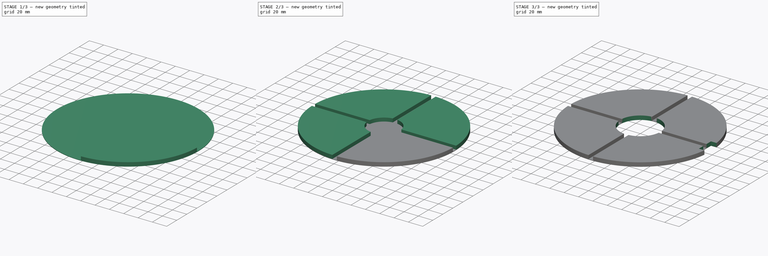
[diagram: build sequence overview — one tinted view per stage of 3, left to right]
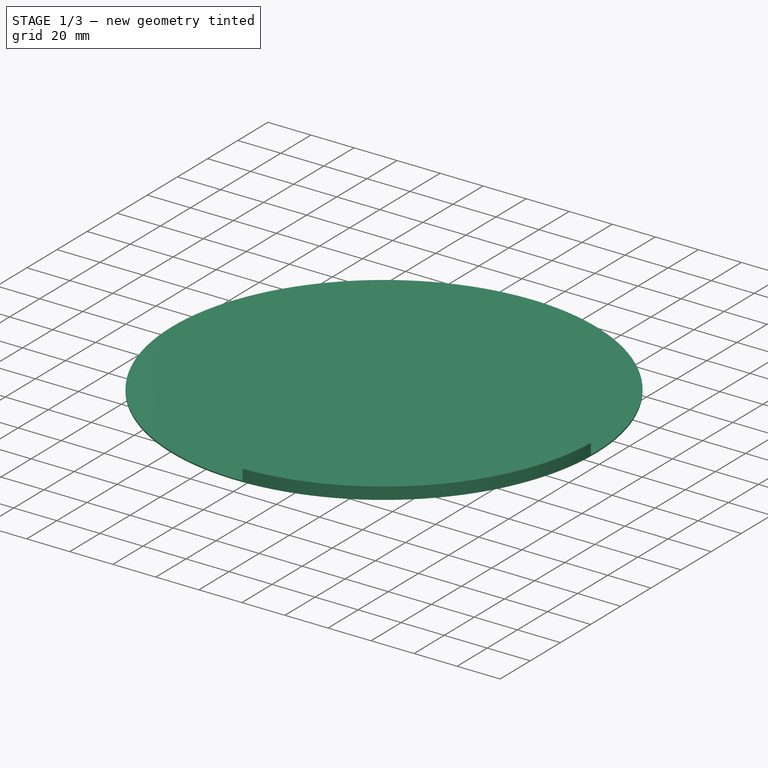
[diagram: stage 1 of 3 — iso view after this stage's code; geometry added in this stage tinted green]
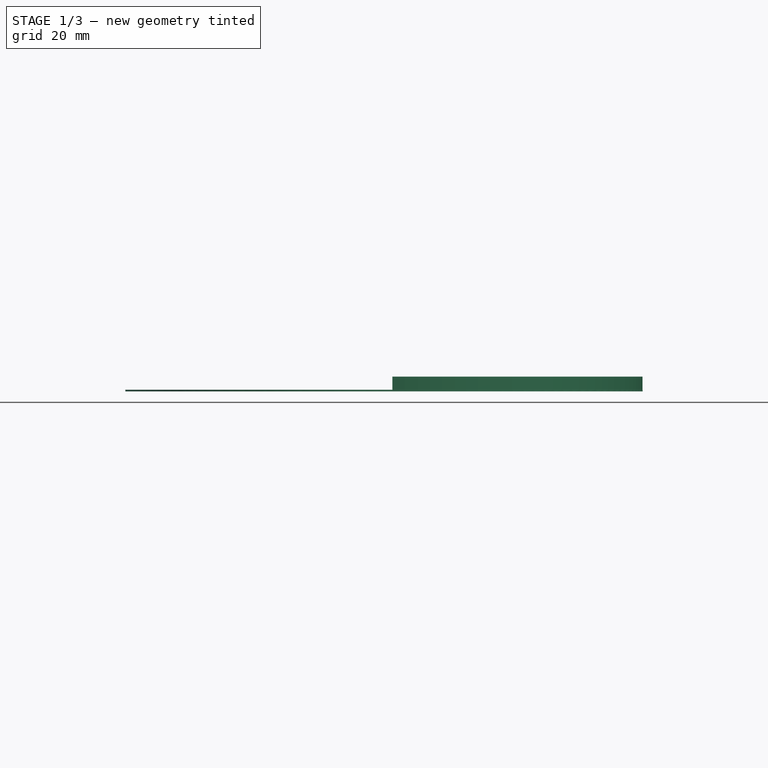
[diagram: stage 1 of 3 — front view after this stage's code; geometry added in this stage tinted green]
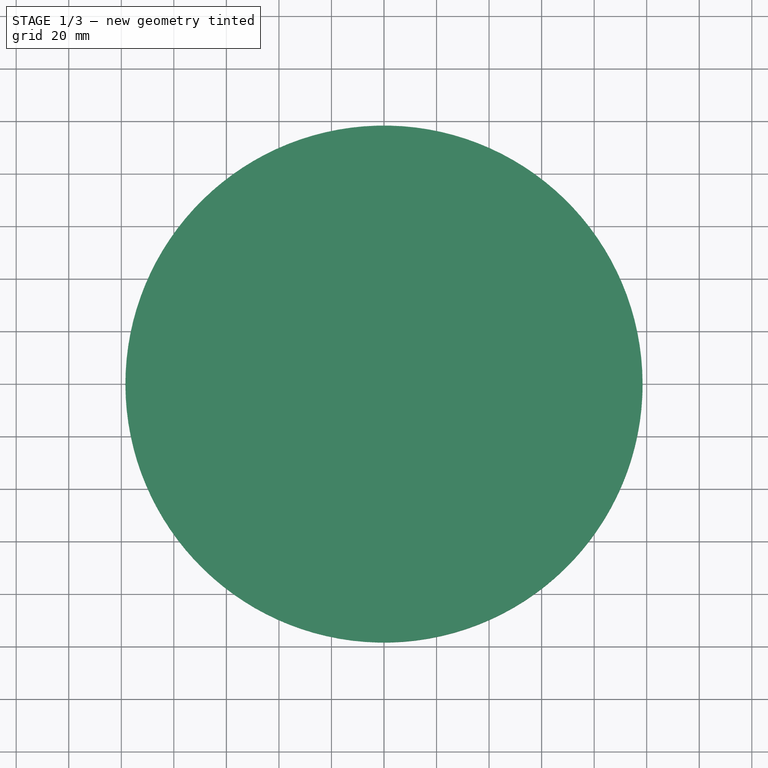
[diagram: stage 1 of 3 — top view after this stage's code; geometry added in this stage tinted green]
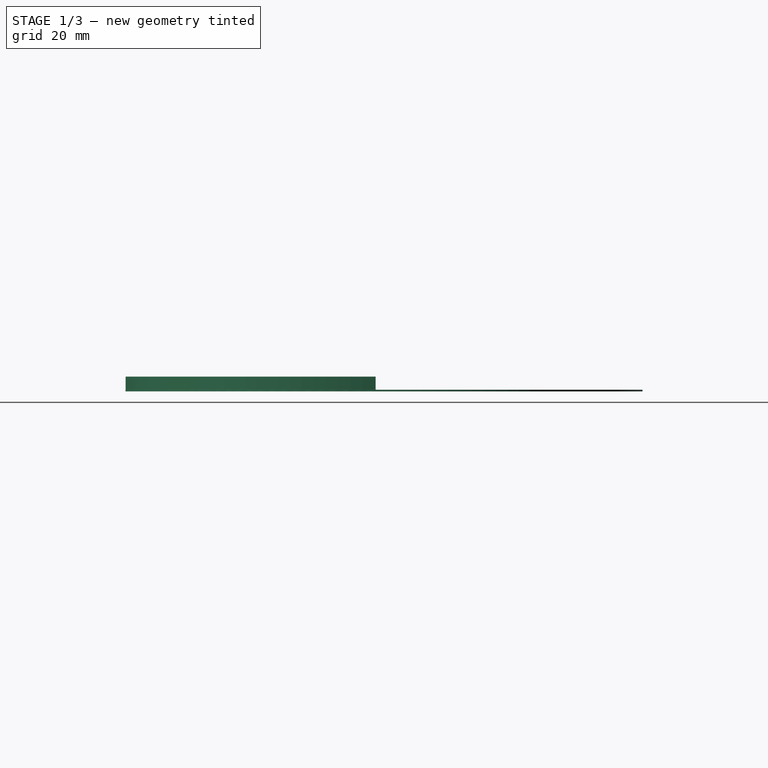
[diagram: stage 1 of 3 — right view after this stage's code; geometry added in this stage tinted green]
FCSTD DOCUMENT  (FreeCAD 0.14R3702 (Git))
Label: spacer_solid
License: CC-BY 3.0
LicenseURL: http://creativecommons.org/licenses/by/3.0/
objects: Sketcher::SketchObject×4, Drawing::FeatureViewPart×4, PartDesign::Pad×2, PartDesign::Pocket×2, PartDesign::PolarPattern×1, Drawing::FeaturePage×1
note: 13 computed .brp shape members not serialized (recipe doc carries the construction recipe); baked Part::Feature solids carry a one-line shape summary decoded from their .brp

FEATURE [Sketcher::SketchObject] Sketch
  sketch-geometry (1):
    g0: Circle CenterX=0 CenterY=0 CenterZ=0 NormalX=0 NormalY=0 NormalZ=1 Radius=98.425
  constraints (2):
    c: Coincident(g0,g-1)
    c: Radius(g0) = 98.425
FEATURE [PartDesign::Pad] Pad
  Length = 0.6
  Length2 = 0.3
  Reversed = true
  Sketch = -> Sketch
  Type = 0
FEATURE [Sketcher::SketchObject] Sketch001
  Support = -> Pad [Face2]
  sketch-geometry (4):
    g0: ArcOfCircle CenterX=0 CenterY=0 CenterZ=0 NormalX=0 NormalY=0 NormalZ=1 Radius=22.225 StartAngle=4.85574 EndAngle=6.13984
    g1: ArcOfCircle CenterX=0 CenterY=0 CenterZ=0 NormalX=0 NormalY=0 NormalZ=1 Radius=98.425 StartAngle=4.74465 EndAngle=6.25092
    g2: LineSegment StartX=21.997 StartY=-3.175 StartZ=0 EndX=98.3738 EndY=-3.175 EndZ=0
    g3: LineSegment StartX=3.175 StartY=-21.997 StartZ=0 EndX=3.175 EndY=-98.3738 EndZ=0
  constraints (12):
    c: Coincident(g0,g-1)
    c: Coincident(g1,g-1)
    c: Horizontal(g2)
    c: Coincident(g2,g1)
    c: Coincident(g2,g0)
    c: Coincident(g3,g0)
    c: Coincident(g3,g1)
    c: Vertical(g3)
    c: Radius(g0) = 22.225
    c: Radius(g1) = 98.425
    c: DistanceY(g-1,g0) = -3.175
    c: DistanceX(g-1,g0) = 3.175
FEATURE [PartDesign::Pad] Pad001
  Length = 5
  Length2 = 0.3
  Sketch = -> Sketch001
  Type = 0
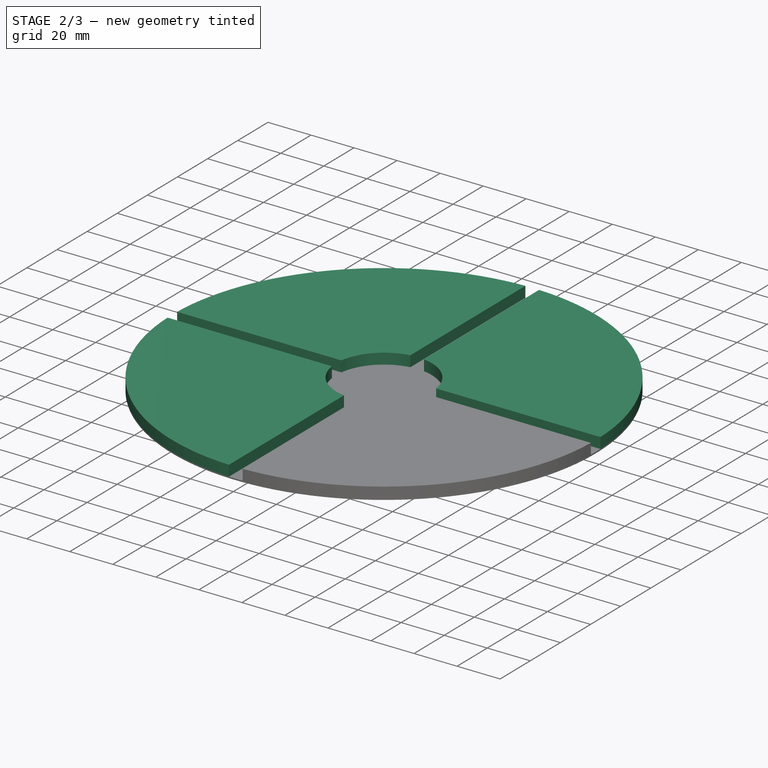
[diagram: stage 2 of 3 — iso view after this stage's code; geometry added in this stage tinted green]
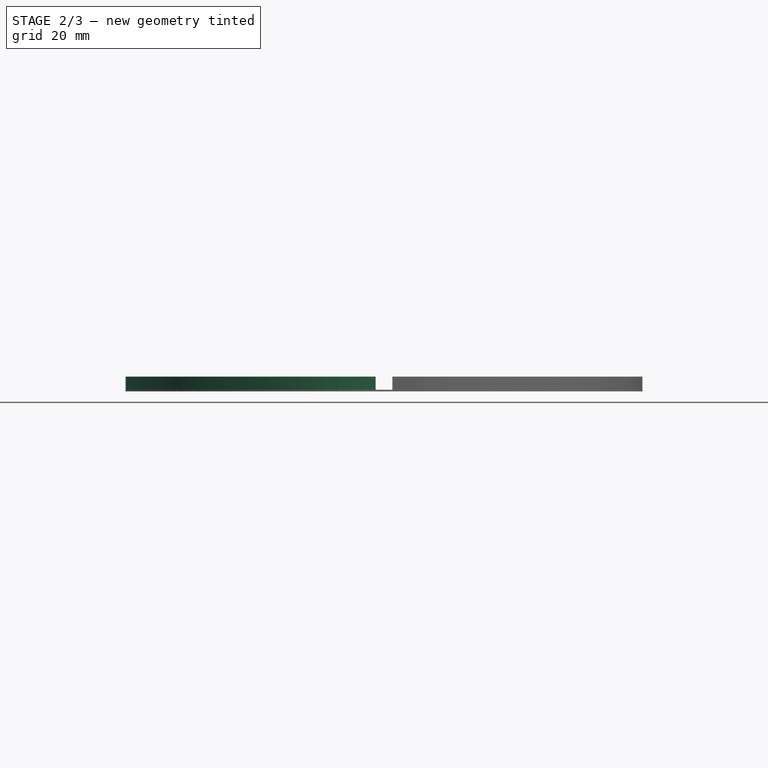
[diagram: stage 2 of 3 — front view after this stage's code; geometry added in this stage tinted green]
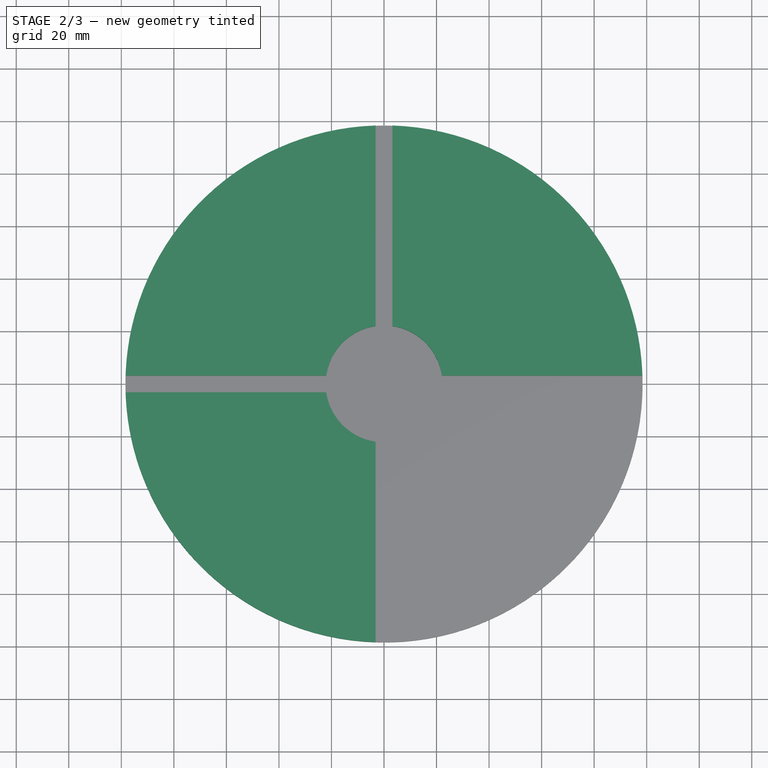
[diagram: stage 2 of 3 — top view after this stage's code; geometry added in this stage tinted green]
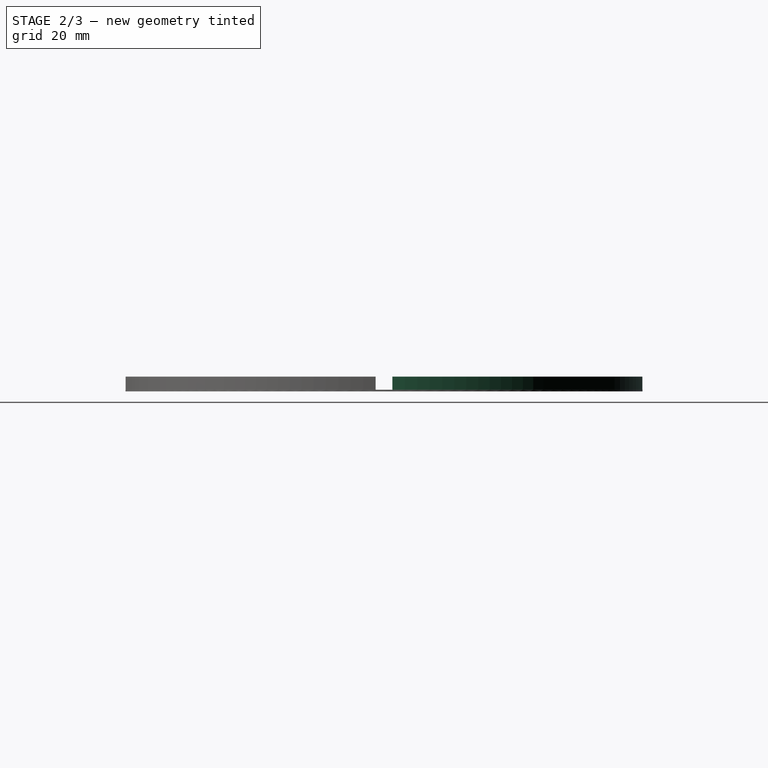
[diagram: stage 2 of 3 — right view after this stage's code; geometry added in this stage tinted green]
FEATURE [PartDesign::PolarPattern] PolarPattern
  Angle = 360
  Axis = -> Sketch001 [N_Axis]
  Occurrences = 4
  Originals = -> [Pad001]
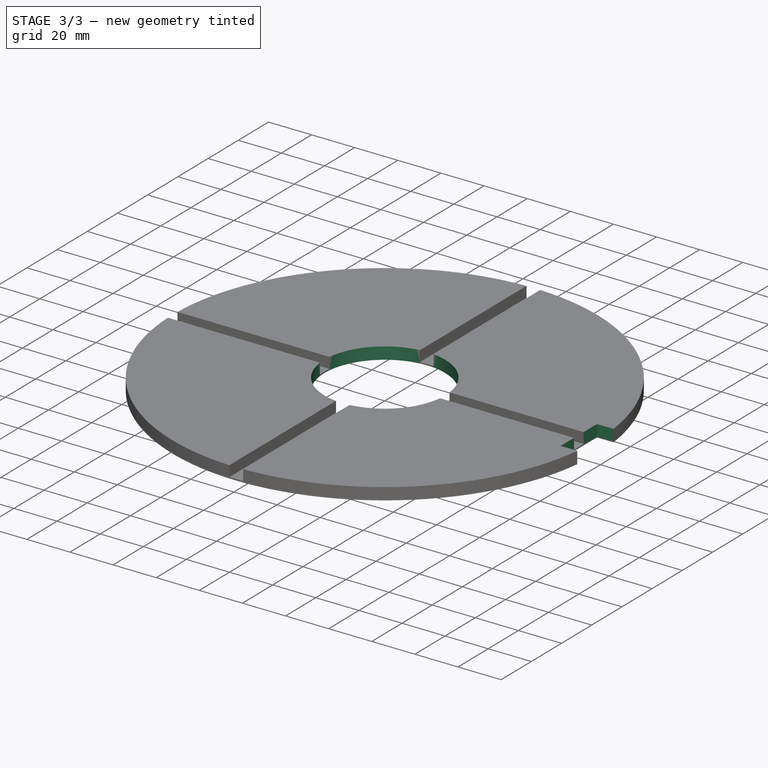
[diagram: stage 3 of 3 — iso view after this stage's code; geometry added in this stage tinted green]
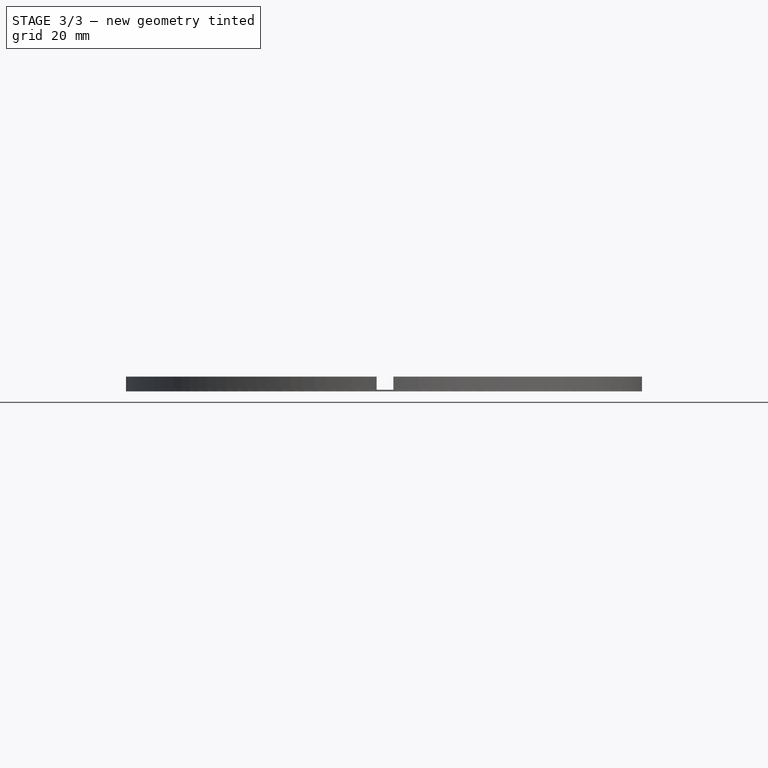
[diagram: stage 3 of 3 — front view after this stage's code; geometry added in this stage tinted green]
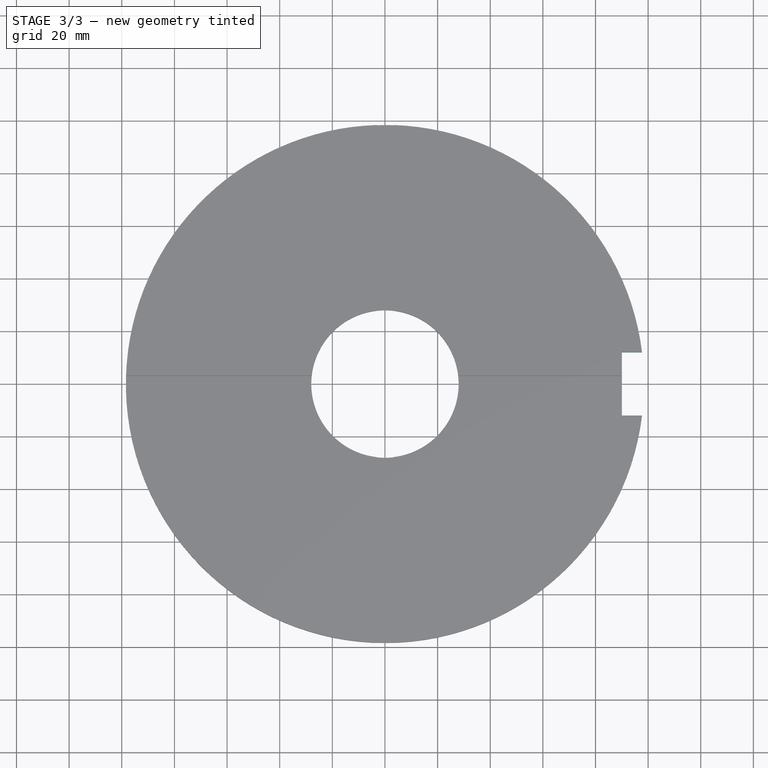
[diagram: stage 3 of 3 — top view after this stage's code; geometry added in this stage tinted green]
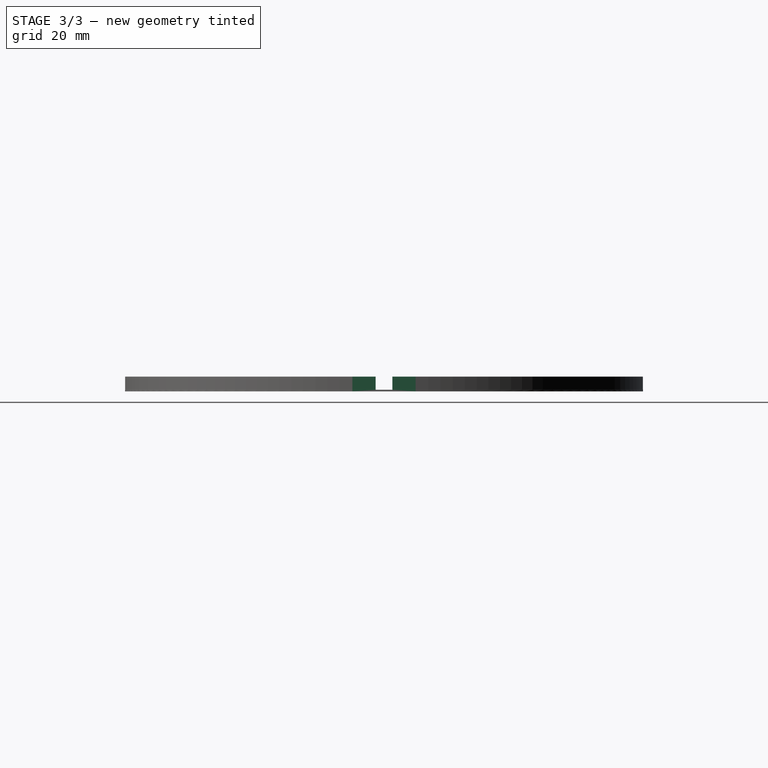
[diagram: stage 3 of 3 — right view after this stage's code; geometry added in this stage tinted green]
FEATURE [Sketcher::SketchObject] Sketch002
  Placement = pos=(0,0,5) rot=(0,0,1;0rad)
  Support = -> PolarPattern [Face23]
  sketch-geometry (1):
    g0: Circle CenterX=0 CenterY=0 CenterZ=0 NormalX=0 NormalY=0 NormalZ=1 Radius=28
  constraints (2):
    c: Coincident(g0,g-1)
    c: Radius(g0) = 28
FEATURE [PartDesign::Pocket] Pocket
  Length = 5
  Sketch = -> Sketch002
  Type = 1
FEATURE [Sketcher::SketchObject] Sketch003
  Placement = pos=(0,0,-0.6) rot=(1,0,0;3.14159rad)
  Support = -> Pocket [Face1]
  sketch-geometry (4):
    g0: LineSegment StartX=105 StartY=12 StartZ=0 EndX=90 EndY=12 EndZ=0
    g1: LineSegment StartX=90 StartY=12 StartZ=0 EndX=90 EndY=-12 EndZ=0
    g2: LineSegment StartX=90 StartY=-12 StartZ=0 EndX=105 EndY=-12 EndZ=0
    g3: LineSegment StartX=105 StartY=-12 StartZ=0 EndX=105 EndY=12 EndZ=0
  constraints (12):
    c: Coincident(g0,g1)
    c: Coincident(g1,g2)
    c: Coincident(g2,g3)
    c: Coincident(g3,g0)
    c: Horizontal(g0)
    c: Horizontal(g2)
    c: Vertical(g1)
    c: Vertical(g3)
    c: DistanceX(g-1,g0) = 90
    c: DistanceY(g-1,g0) = 12
    c: DistanceY(g-1,g1) = -12
    c: DistanceX(g2,g1) = -15
FEATURE [PartDesign::Pocket] Pocket001
  Length = 5
  Sketch = -> Sketch003
  Type = 1
FEATURE [Drawing::FeatureViewPart] Ortho  label="Ortho_0_0"
  Direction = (1,0,0)
  HiddenWidth = 0.15
  LineWidth = 0.35
  Rotation = -90
  Scale = 0.75
  ShowHiddenLines = false
  ShowSmoothLines = false
  Source = -> Pocket001
  Tolerance = 0.05
  ViewResult = <blob: 2855 chars omitted>
  X = 118.909
  Y = 204.646
FEATURE [Drawing::FeatureViewPart] Ortho001  label="Ortho_1_0"
  Direction = (0,1,0)
  HiddenWidth = 0.15
  LineWidth = 0.35
  Rotation = 180
  Scale = 0.75
  ShowHiddenLines = false
  ShowSmoothLines = false
  Source = -> Pocket001
  Tolerance = 0.05
  ViewResult = <blob: 2247 chars omitted>
  X = 301.086
  Y = 204.646
FEATURE [Drawing::FeatureViewPart] Ortho002  label="Ortho_1_1"
  Direction = (0.57735,0.57735,0.57735)
  HiddenWidth = 0.15
  LineWidth = 0.35
  Rotation = -120
  Scale = 0.75
  ShowHiddenLines = false
  ShowSmoothLines = false
  Source = -> Pocket001
  Tolerance = 0.05
  ViewResult = <blob: 4629 chars omitted>
  X = 301.167
  Y = 106.907
FEATURE [Drawing::FeatureViewPart] Ortho003  label="Ortho_0_1"
  Direction = (0,0,1)
  HiddenWidth = 0.15
  LineWidth = 0.35
  Rotation = 90
  Scale = 0.75
  ShowHiddenLines = false
  ShowSmoothLines = false
  Source = -> Pocket001
  Tolerance = 0.05
  ViewResult = <g id="Ortho_0_1"\n   transform="rotate(90,118.909,105.723) translate(118.909,105.723) scale(0.75,0.75)"\n  >\n<g   stroke="rgb(0, 0, 0)"\n   stroke-width="0.466667"\n   stroke-linecap="butt"\n   stroke-linejoin="miter"\n   fill="none"\n   transform="scale(1,-1)"\n  >\n<path d="M3.175 98.3738 A98.425 98.425 0 0 1 -3.175 98.3738" /><path d="M-98.3738 3.175 A98.425 98.425 0 0 1 -98.3738 -3.175" /><path d="M-3.175 -98.3738 A98.425 98.425 0 0 1 3.175 -98.3738" /><path id= "4" d=" M 97.6907 -12 L 90 -12 " />\n<path id= "5" d=" M 90 3.175 L 90 12 " />\n<path id= "6" d=" M 90 -3.175 L 90 3.175 " />\n<path id= "7" d=" M 90 -12 L 90 -3.175 " />\n<path id= "8" d=" M 90 12 L 97.6907 12 " />\n<path d="M28 0 A28 28 0 0 1 27.8194 3.175" /><path d="M27.8194 3.175 A28 28 0 0 1 3.175 27.8194" /><path d="M3.175 27.8194 A28 28 0 0 1 -3.175 27.8194" /><path d="M-3.175 27.8194 A28 28 0 0 1 -27.8194 3.175" /><path d="M-27.8194 3.175 A28 28 0 0 1 -27.8194 -3.175" /><path d="M-27.8194 -3.175 A28 28 0 0 1 -3.175 -27.8194" /><path d="M-3.175 -27.8194 A28 28 0 0 1 3.175 -27.8194" /><path d="M3.175 -27.8194 A28 28 0 0 1 27.8194 -3.175" /><path d="M27.8194 -3.175 A28 28 0 0 1 28 9.2618e-14" /><path d="M97.6907 12 A98.425 98.425 0 0 1 3.175 98.3738" /><path d="M-3.175 98.3738 A98.425 98.425 0 0 1 -98.3738 3.175" /><path d="M-98.3738 -3.175 A98.425 98.425 0 0 1 -3.175 -98.3738" /><path d="M3.175 -98.3738 A98.425 98.425 0 0 1 97.6907 -12" /><path id= "22" d=" M 3.175 -27.8194 L 3.175 -98.3738 " />\n<path id= "23" d=" M 27.8194 -3.175 L 90 -3.175 " />\n<path id= "24" d=" M 27.8194 3.175 L 90 3.175 " />\n<path id= "25" d=" M 3.175 27.8194 L 3.175 98.3738 " />\n<path id= "26" d=" M -3.175 27.8194 L -3.175 98.3738 " />\n<path id= "27" d=" M -27.8194 3.175 L -98.3738 3.175 " />\n<path id= "28" d=" M -27.8194 -3.175 L -98.3738 -3.175 " />\n<path id= "29" d=" M -3.175 -27.8194 L -3.175 -98.3738 " />\n</g>\n</g>
  X = 118.909
  Y = 105.723
FEATURE [Drawing::FeaturePage] Page
  EditableTexts = Brant Carlson | 3/31/2015 | Spacer / electrode support | 3d printable
  Group = -> [Ortho,Ortho001,Ortho002,Ortho003]
  Template = <path>
note: 1 file-system path scrubbed to <path> (originals preserved in the JSON sidecar)
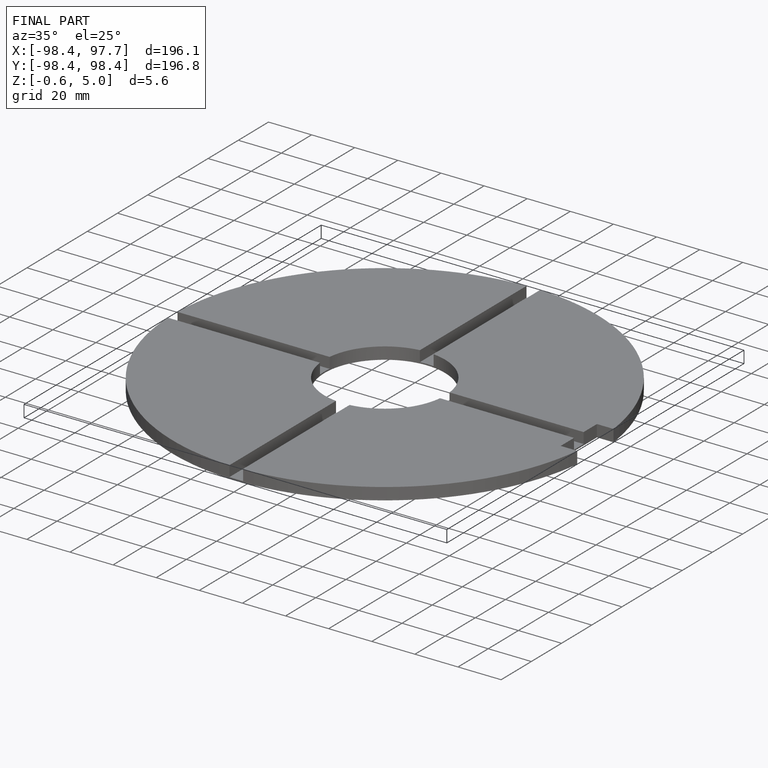
[diagram: finished part — iso view with bounding-box wireframe]
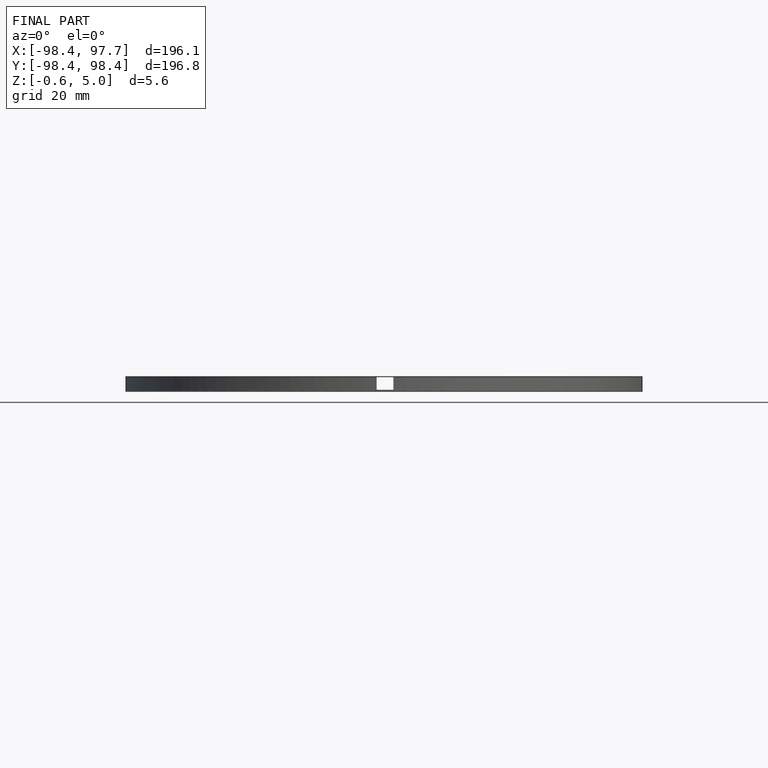
[diagram: finished part — front view with bounding-box wireframe]
